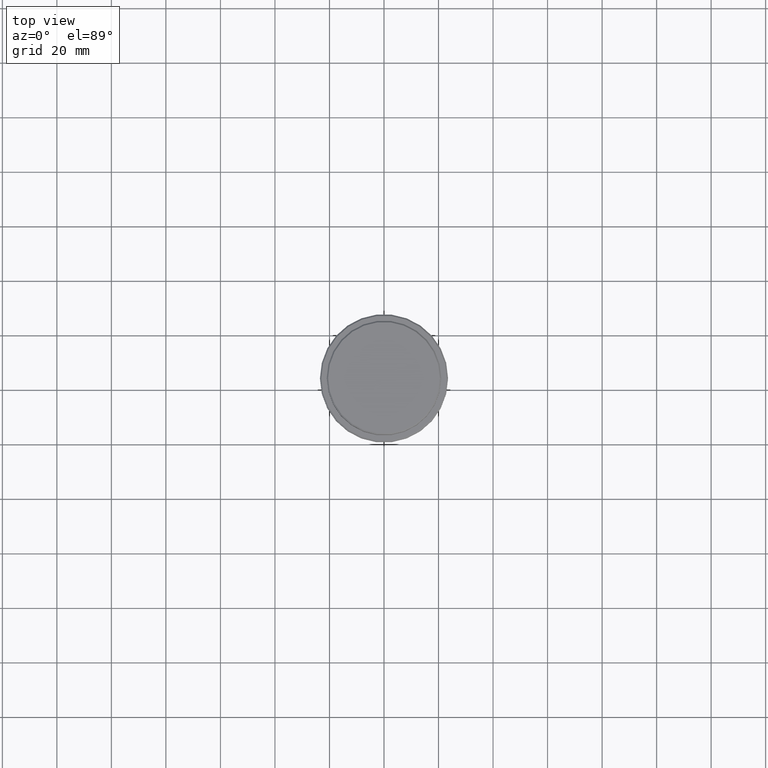
[diagram: clean part render]
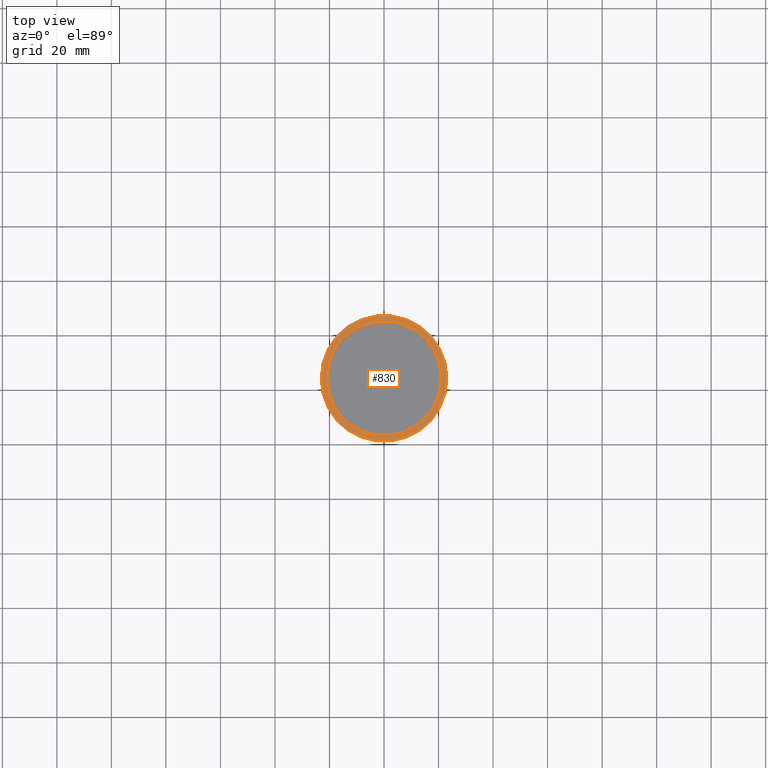
[diagram: same view with one face highlighted and labeled with its STEP entity id]
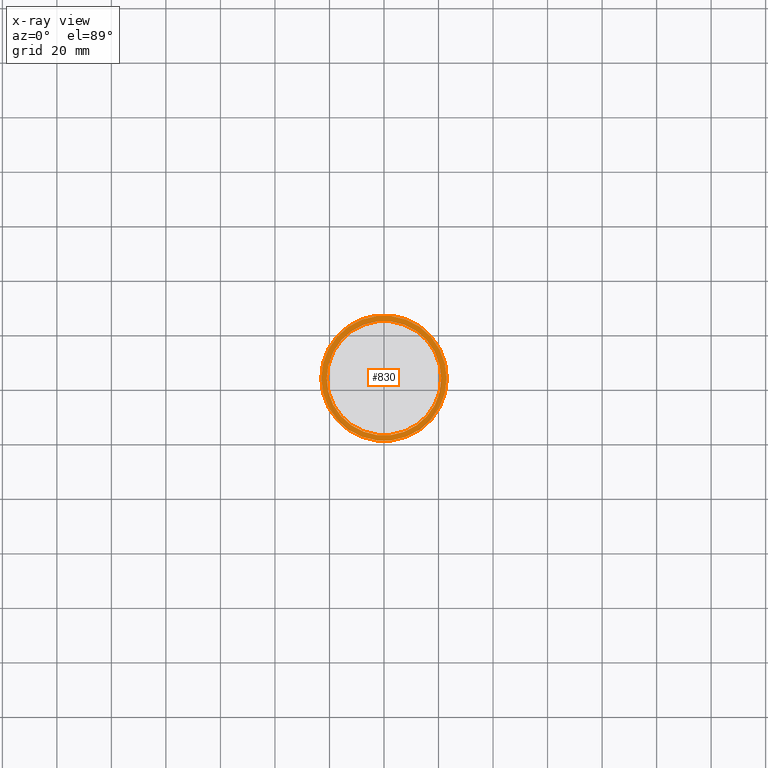
[diagram: x-ray of the same camera — body ghosted, the highlighted face saturated]
A machine part, top view. The second image highlights one B-rep face of the part: STEP entity #830.
The next image is the same camera in x-ray: the body ghosted, the highlighted face saturated — about 0% of this face is hidden behind the body in this view.
In plain terms, the highlighted planar face has unit normal (0, -0, 1).
Its self-contained STEP definition (entity closure, byte-faithful):
#31 = DIRECTION ( 'NONE',  ( 0.000000000000000000, -0.000000000000000000, 1.000000000000000000 ) ) ;
#119 = DIRECTION ( 'NONE',  ( 1.000000000000000000, 0.000000000000000000, 0.000000000000000000 ) ) ;
#148 = AXIS2_PLACEMENT_3D ( 'NONE', #546, #774, #983 ) ;
#151 = CARTESIAN_POINT ( 'NONE',  ( 22.99999999999999645, 2.847303808017596139E-15, -9.000000000000000000 ) ) ;
#179 = EDGE_CURVE ( 'NONE', #837, #722, #715, .T. ) ;
#190 = AXIS2_PLACEMENT_3D ( 'NONE', #1102, #1096, #119 ) ;
#227 = CIRCLE ( 'NONE', #190, 22.99999999999999645 ) ;
#252 = DIRECTION ( 'NONE',  ( 1.000000000000000000, 0.000000000000000000, 0.000000000000000000 ) ) ;
#273 = DIRECTION ( 'NONE',  ( 0.000000000000000000, 0.000000000000000000, -1.000000000000000000 ) ) ;
#370 = ORIENTED_EDGE ( 'NONE', *, *, #726, .T. ) ;
#371 = EDGE_CURVE ( 'NONE', #722, #837, #462, .T. ) ;
#386 = DIRECTION ( 'NONE',  ( 1.000000000000000000, 0.000000000000000000, 0.000000000000000000 ) ) ;
#395 = CARTESIAN_POINT ( 'NONE',  ( 0.000000000000000000, 0.000000000000000000, -9.000000000000000000 ) ) ;
#416 = EDGE_LOOP ( 'NONE', ( #434, #948 ) ) ;
#434 = ORIENTED_EDGE ( 'NONE', *, *, #371, .T. ) ;
#438 = DIRECTION ( 'NONE',  ( -0.000000000000000000, -0.000000000000000000, 1.000000000000000000 ) ) ;
#460 = FACE_BOUND ( 'NONE', #416, .T. ) ;
#462 = CIRCLE ( 'NONE', #540, 20.99999999999999289 ) ;
#540 = AXIS2_PLACEMENT_3D ( 'NONE', #395, #273, #386 ) ;
#546 = CARTESIAN_POINT ( 'NONE',  ( 0.000000000000000000, 0.000000000000000000, -9.000000000000000000 ) ) ;
#566 = FACE_OUTER_BOUND ( 'NONE', #1397, .T. ) ;
#598 = CARTESIAN_POINT ( 'NONE',  ( 0.000000000000000000, 20.49999999999999645, -9.000000000000000000 ) ) ;
#691 = PLANE ( 'NONE',  #902 ) ;
#696 = EDGE_CURVE ( 'NONE', #1343, #1259, #227, .T. ) ;
#708 = AXIS2_PLACEMENT_3D ( 'NONE', #879, #438, #875 ) ;
#715 = CIRCLE ( 'NONE', #148, 20.99999999999999289 ) ;
#722 = VERTEX_POINT ( 'NONE', #1092 ) ;
#726 = EDGE_CURVE ( 'NONE', #1259, #1343, #982, .T. ) ;
#774 = DIRECTION ( 'NONE',  ( 0.000000000000000000, 0.000000000000000000, -1.000000000000000000 ) ) ;
#830 = ADVANCED_FACE ( 'NONE', ( #566, #460 ), #691, .T. ) ;
#837 = VERTEX_POINT ( 'NONE', #1234 ) ;
#875 = DIRECTION ( 'NONE',  ( 1.000000000000000000, 0.000000000000000000, 0.000000000000000000 ) ) ;
#879 = CARTESIAN_POINT ( 'NONE',  ( 0.000000000000000000, 0.000000000000000000, -9.000000000000000000 ) ) ;
#902 = AXIS2_PLACEMENT_3D ( 'NONE', #598, #31, #252 ) ;
#903 = CARTESIAN_POINT ( 'NONE',  ( -22.99999999999999645, 0.000000000000000000, -9.000000000000000000 ) ) ;
#948 = ORIENTED_EDGE ( 'NONE', *, *, #179, .T. ) ;
#982 = CIRCLE ( 'NONE', #708, 22.99999999999999645 ) ;
#983 = DIRECTION ( 'NONE',  ( 1.000000000000000000, 0.000000000000000000, 0.000000000000000000 ) ) ;
#1047 = ORIENTED_EDGE ( 'NONE', *, *, #696, .T. ) ;
#1092 = CARTESIAN_POINT ( 'NONE',  ( 20.99999999999999289, 0.000000000000000000, -9.000000000000000000 ) ) ;
#1096 = DIRECTION ( 'NONE',  ( -0.000000000000000000, -0.000000000000000000, 1.000000000000000000 ) ) ;
#1102 = CARTESIAN_POINT ( 'NONE',  ( 0.000000000000000000, 0.000000000000000000, -9.000000000000000000 ) ) ;
#1234 = CARTESIAN_POINT ( 'NONE',  ( -20.99999999999999289, 2.571758278209440872E-15, -9.000000000000000000 ) ) ;
#1259 = VERTEX_POINT ( 'NONE', #151 ) ;
#1343 = VERTEX_POINT ( 'NONE', #903 ) ;
#1397 = EDGE_LOOP ( 'NONE', ( #1047, #370 ) ) ;